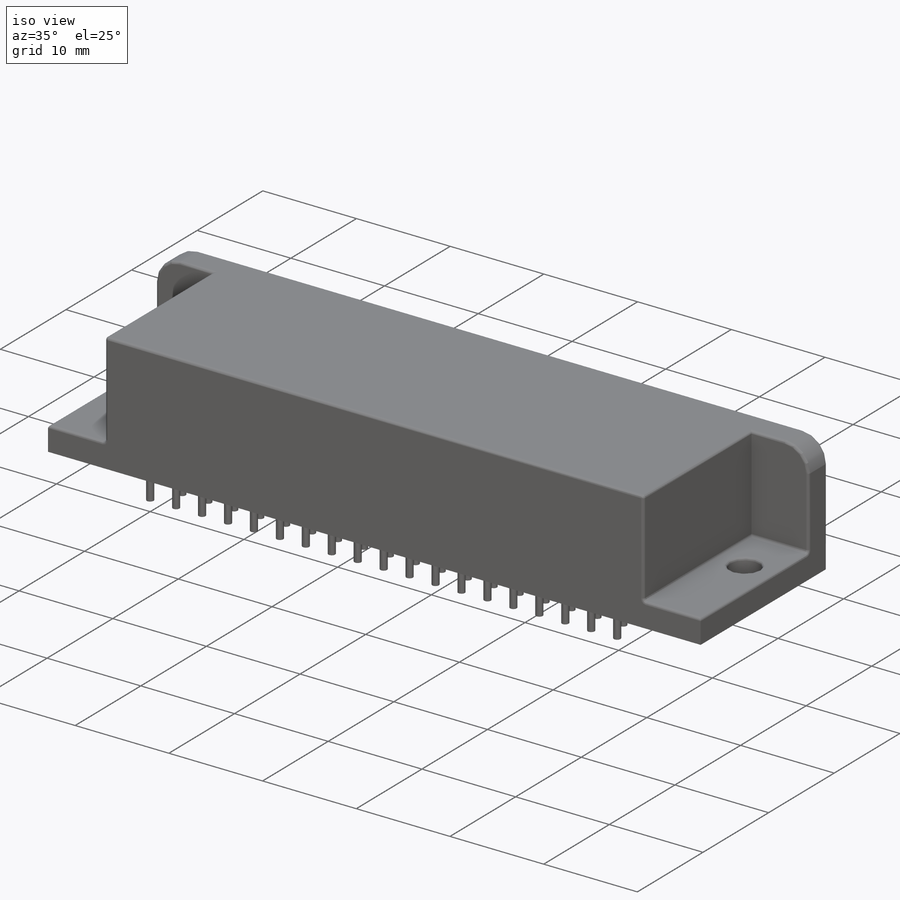
[diagram: iso view]
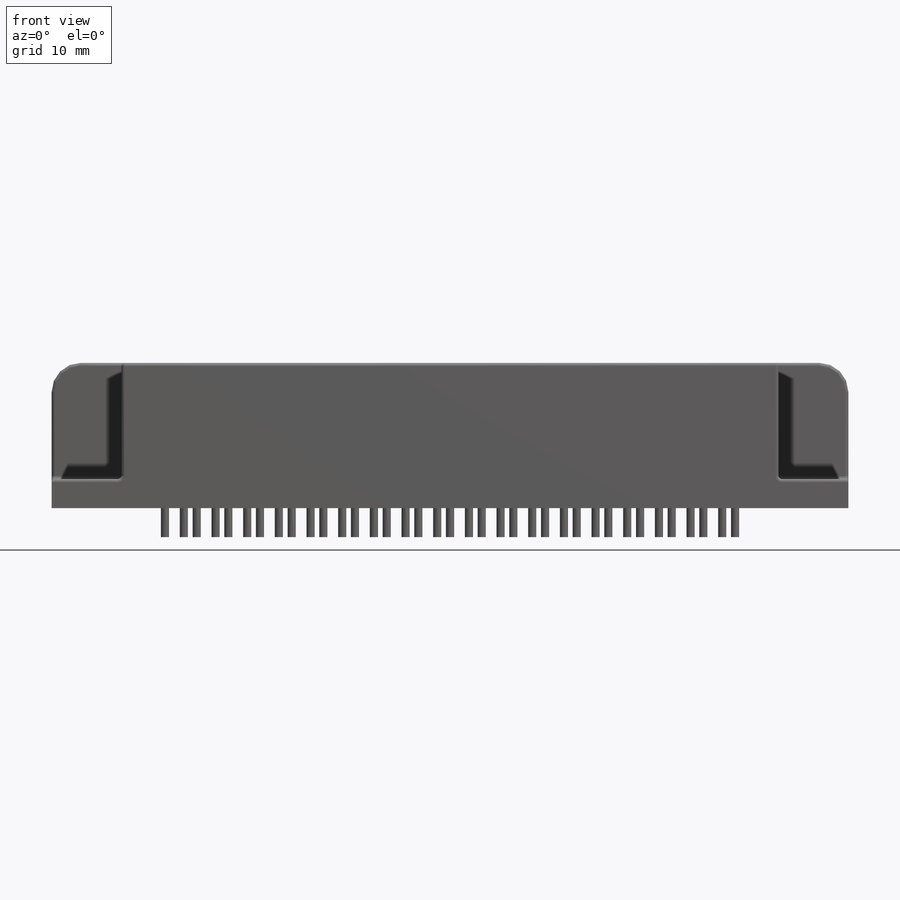
[diagram: front view]
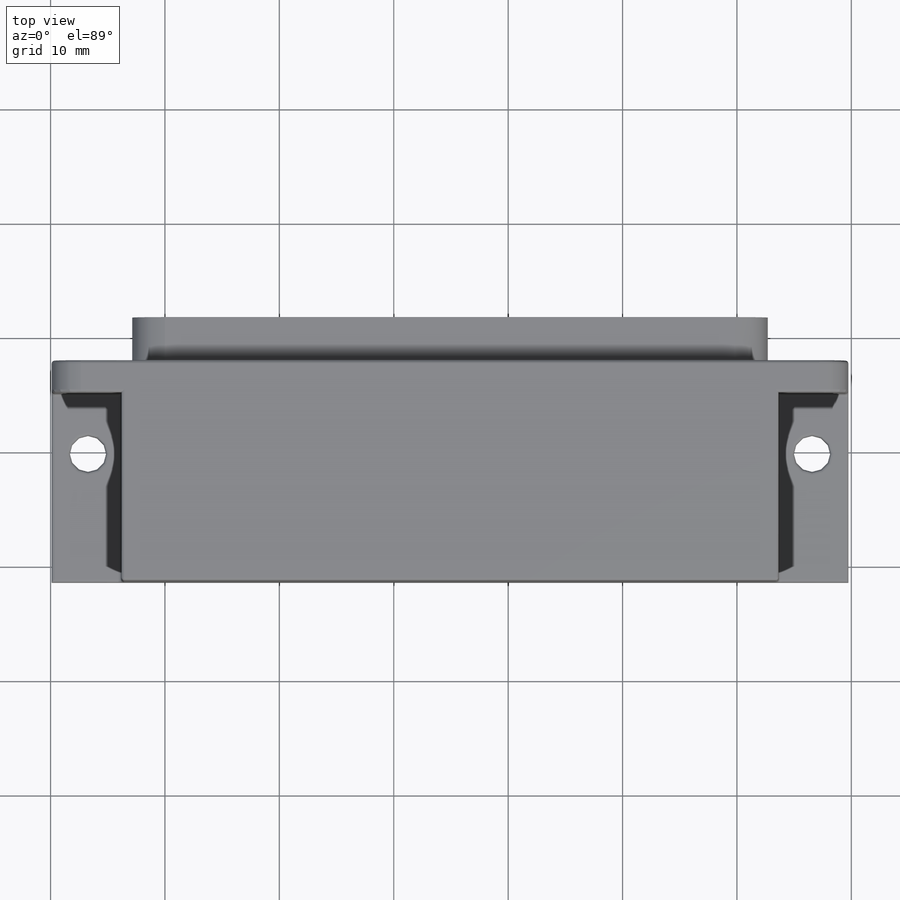
[diagram: top view]
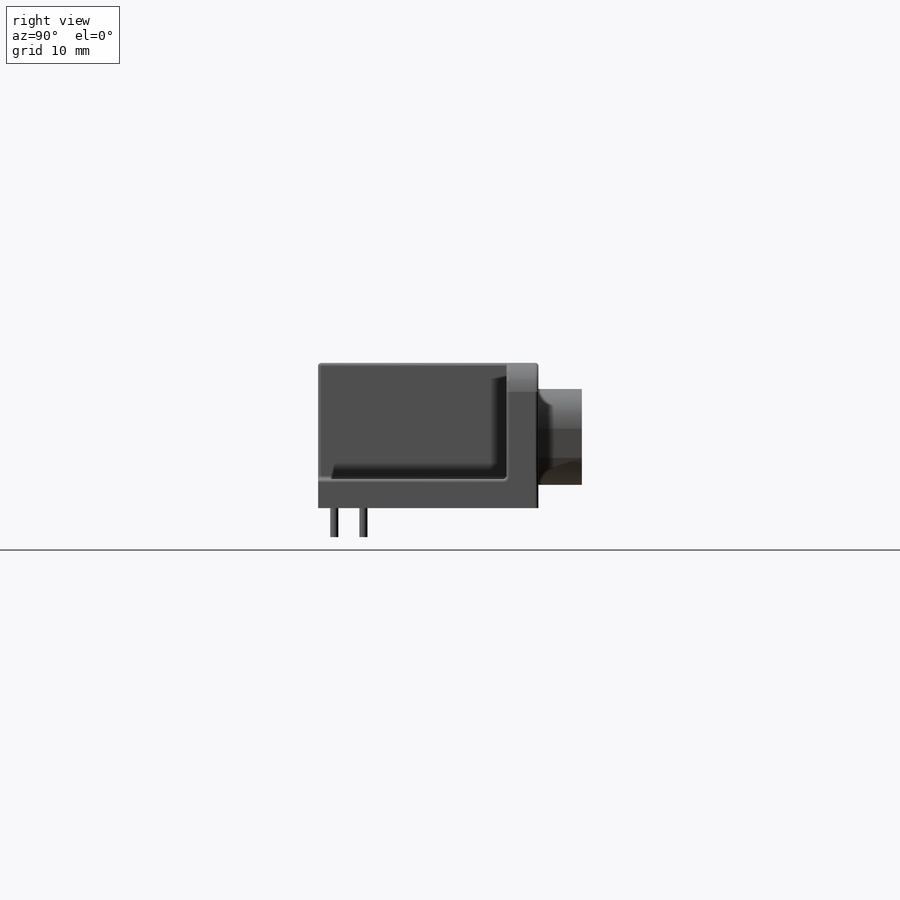
[diagram: right view]
SOLIDWORKS PART (.sldprt)
format: sldprt  version: not decoded by parser v0  size: 598,016 bytes
history: native  units: mm
features: sketch x10, extrude x6, fillet x4, pattern_linear x4, cut_extrude x3, material x1, plane x1, mirror x1 (+12 scaffold rows collapsed)
feature tree (42):
  scaffold x12  (default folders/planes/origin — collapsed)
  material  "Material <not specified>"
  sketch  "Sketch1"  dims[D1=69.6468mm D2=19.2532mm D3=1.4224mm D4=9.906mm]
  extrude  "Base-Extrude"  Depth=12.7mm
  sketch  "Sketch2"  dims[c1.D5=2.54mm c1.D1=2.54mm c1.D2=2.286mm c1.D3=~28.605577mm c2.D3=100.95deg c2.D4=26.7589mm c2.D1=2.286mm c2.D2=8.382mm c3.D1=2.032mm c3.D4=~48.843713mm c3.D6=~49.835132mm]
  extrude  "Boss-Extrude1"  Depth=3.81mm
  sketch  "Sketch13"  dims[D1=0.254mm]
  cut_extrude  "Cut-Extrude5"  Depth=3.81mm
  sketch  "Sketch4"  dims[D1=1.016mm D2=10.16mm D3=5.08mm]
  extrude  "Boss-Extrude4"  Depth=3.81mm
  fillet  "Fillet7"  Radius=0.4826mm
  pattern_linear  "LPattern5"  Count1=19 Count2=1 Spacing1=2.7686mm Spacing2=50mm
  sketch  "Sketch5"  dims[c1.D2=1.27mm c1.D1=11.557mm c2.D2=5.08mm]
  extrude  "Boss-Extrude6"  Depth=3.81mm
  fillet  "Fillet8"  Radius=0.4826mm
  pattern_linear  "LPattern6"  Count1=18 Count2=1 Spacing1=2.7686mm Spacing2=50mm
  sketch  "Sketch6"  dims[D1=0.7112mm D2=2.54mm D3=11.557mm]
  extrude  "Boss-Extrude2"  Depth=2.54mm
  pattern_linear  "LPattern1"  Count1=19 Count2=1 Spacing1=2.7686mm Spacing2=50mm
  sketch  "Sketch7"  dims[D1=0.7112mm D2=11.557mm D3=2.54mm]
  extrude  "Boss-Extrude3"  [1 undecoded]
  pattern_linear  "LPattern4"  Count1=18 Count2=1 Spacing1=2.7686mm Spacing2=50mm
  plane  "Mid Plane"
  sketch  "Sketch9"  dims[D1=10.16mm D2=6.096mm]
  cut_extrude  "Cut-Extrude3"  Depth=16.4592mm
  sketch  "Sketch11"  dims[D1=3.175mm D2=11.2522mm D3=3.175mm]
  cut_extrude  "Cut-Extrude4"  [1 undecoded]
  mirror  "Mirror1"
  fillet  "Fillet1"  Radius=2.54mm
  fillet  "Fillet2"  Radius=0.254mm
  sketch  "Component_Outline"
decode coverage: 24 of 28 modeling features carry decoded parameters
note: ~ marks probable driven/reference dimensions
note: 2 parameter values undecoded
note: suppression state not decoded; provenance and decode notes live in map.json
